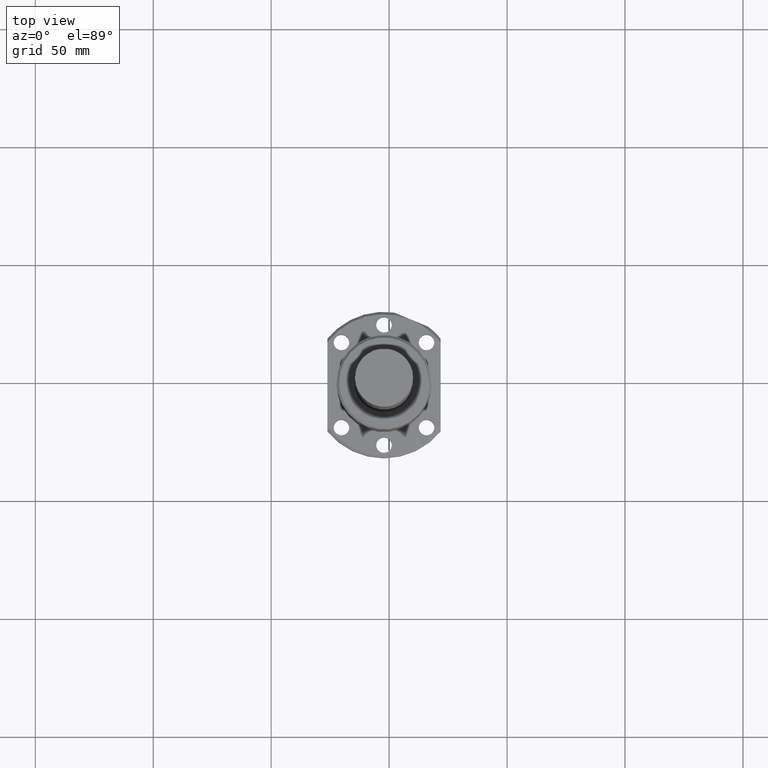
[diagram: clean part render]
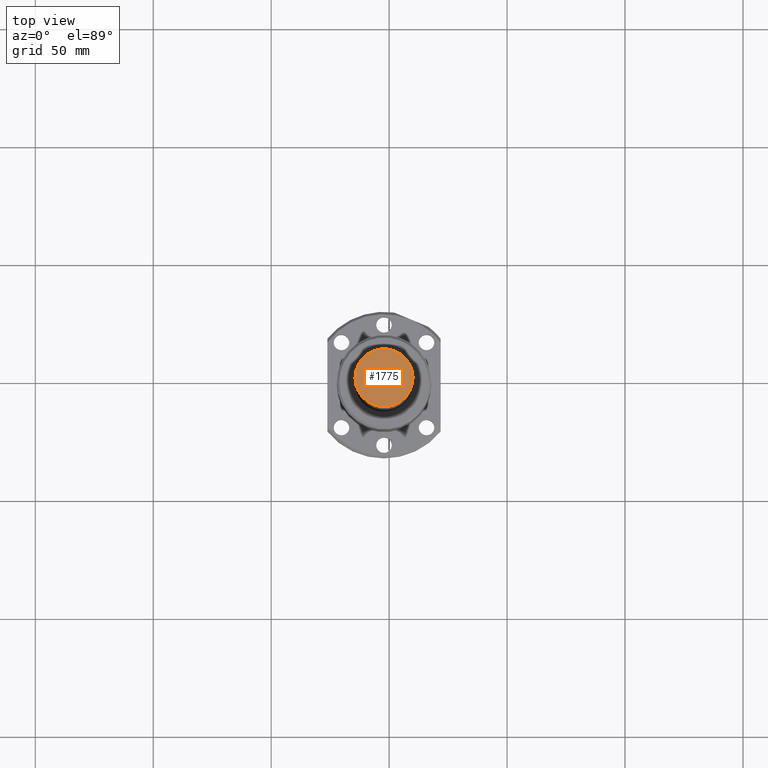
[diagram: same view with one face highlighted and labeled with its STEP entity id]
A machine part, top view. The second image highlights one B-rep face of the part: STEP entity #1775.
In plain terms, the highlighted planar face has unit normal (0, 0, 1).
Its self-contained STEP definition (entity closure, byte-faithful):
#47 = VERTEX_POINT ( 'NONE', #1754 ) ;
#80 = ORIENTED_EDGE ( 'NONE', *, *, #1714, .T. ) ;
#376 = VERTEX_POINT ( 'NONE', #1198 ) ;
#446 = AXIS2_PLACEMENT_3D ( 'NONE', #512, #498, #496 ) ;
#496 = DIRECTION ( 'NONE',  ( 1.000000000000000000, 0.0000000000000000000, 0.0000000000000000000 ) ) ;
#498 = DIRECTION ( 'NONE',  ( 0.0000000000000000000, 0.0000000000000000000, 1.000000000000000000 ) ) ;
#512 = CARTESIAN_POINT ( 'NONE',  ( 0.0000000000000000000, 0.0000000000000000000, 0.0000000000000000000 ) ) ;
#529 = DIRECTION ( 'NONE',  ( 1.000000000000000000, 0.0000000000000000000, 0.0000000000000000000 ) ) ;
#530 = DIRECTION ( 'NONE',  ( 0.0000000000000000000, 0.0000000000000000000, 1.000000000000000000 ) ) ;
#535 = CARTESIAN_POINT ( 'NONE',  ( -12.44760000000000000, -12.44760000000000000, 0.0000000000000000000 ) ) ;
#536 = PLANE ( 'NONE',  #611 ) ;
#537 = CIRCLE ( 'NONE', #446, 12.30000000000000100 ) ;
#584 = CIRCLE ( 'NONE', #1624, 12.30000000000000100 ) ;
#610 = DIRECTION ( 'NONE',  ( 1.000000000000000000, 0.0000000000000000000, 0.0000000000000000000 ) ) ;
#611 = AXIS2_PLACEMENT_3D ( 'NONE', #535, #530, #529 ) ;
#614 = CARTESIAN_POINT ( 'NONE',  ( 0.0000000000000000000, 0.0000000000000000000, 0.0000000000000000000 ) ) ;
#629 = FACE_OUTER_BOUND ( 'NONE', #1376, .T. ) ;
#1198 = CARTESIAN_POINT ( 'NONE',  ( -12.30000000000000100, 1.506315562951244400E-015, 0.0000000000000000000 ) ) ;
#1216 = ORIENTED_EDGE ( 'NONE', *, *, #1798, .T. ) ;
#1376 = EDGE_LOOP ( 'NONE', ( #80, #1216 ) ) ;
#1615 = DIRECTION ( 'NONE',  ( 0.0000000000000000000, 0.0000000000000000000, 1.000000000000000000 ) ) ;
#1624 = AXIS2_PLACEMENT_3D ( 'NONE', #614, #1615, #610 ) ;
#1714 = EDGE_CURVE ( 'NONE', #47, #376, #584, .T. ) ;
#1754 = CARTESIAN_POINT ( 'NONE',  ( 12.30000000000000100, 0.0000000000000000000, 0.0000000000000000000 ) ) ;
#1775 = ADVANCED_FACE ( 'NONE', ( #629 ), #536, .T. ) ;
#1798 = EDGE_CURVE ( 'NONE', #376, #47, #537, .T. ) ;